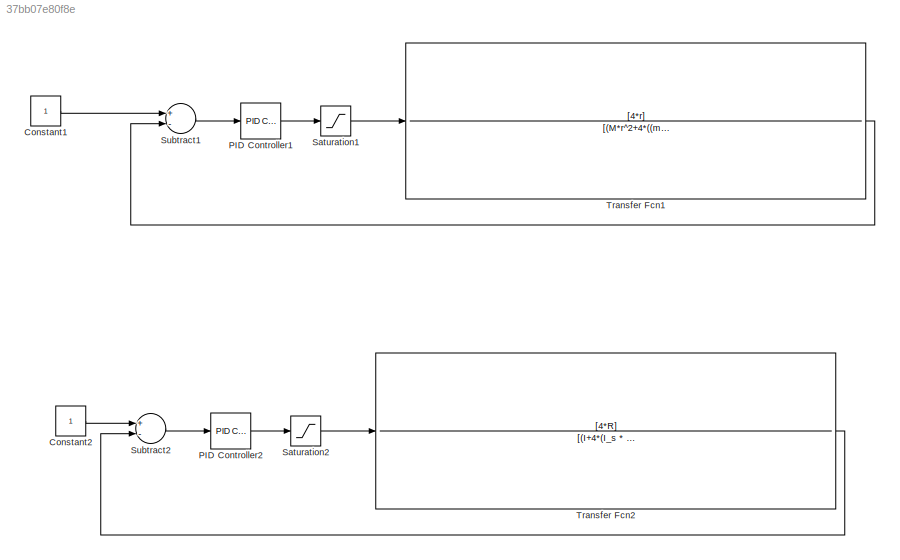
MODEL slx_37bb07e80f8e
KIND model
CONFIG AbsTol = auto
CONFIG EnableMultiTasking = off
CONFIG FixedStep = auto
CONFIG MaxStep = auto
CONFIG MinStep = auto
CONFIG RelTol = 1e-3
CONFIG SampleTimeConstraint = Unconstrained
CONFIG Solver = VariableStepAuto
CONFIG SolverName = VariableStepAuto
CONFIG StartTime = 0.0
CONFIG StopTime = 10.0
BLOCK [Constant] Constant1
BLOCK [Constant] Constant2
BLOCK [Reference] PID Controller1  REF=simulink/Continuous/PID Controller
  Ports = [1, 1]
  SourceBlock = simulink/Continuous/PID Controller
  SourceProductBaseCode = SL
  SourceProductName = Simulink
  SourceType = PID 1dof
BLOCK [Reference] PID Controller2  REF=simulink/Continuous/PID Controller
  Ports = [1, 1]
  SourceBlock = simulink/Continuous/PID Controller
  SourceProductBaseCode = SL
  SourceProductName = Simulink
  SourceType = PID 1dof
BLOCK [Saturate] Saturation1
  InputPortMap = u0
  LowerLimit = -0.03
  Ports = [1, 1]
  UpperLimit = 0.03
BLOCK [Saturate] Saturation2
  InputPortMap = u0
  LowerLimit = -0.03
  Ports = [1, 1]
  UpperLimit = 0.03
BLOCK [Sum] Subtract1
  InputSameDT = off
  Inputs = +-
  OutDataTypeStr = Inherit: Inherit via internal rule
  Ports = [2, 1]
  SaturateOnIntegerOverflow = off
BLOCK [Sum] Subtract2
  InputSameDT = off
  Inputs = +-
  OutDataTypeStr = Inherit: Inherit via internal rule
  Ports = [2, 1]
  SaturateOnIntegerOverflow = off
BLOCK [TransferFcn] Transfer Fcn1
  Denominator = [(M*r^2+4*((m_s+m_i)*r^2+I_s)) 0]
  Numerator = [4*r]
BLOCK [TransferFcn] Transfer Fcn2
  Denominator = [(I+4*(I_s * ( 1 + R/r )+I_i+(m_s+m_i)*R^2))*r 0 0]
  Numerator = [4*R]
LINE Constant1:1 -> Subtract1:1
LINE Constant2:1 -> Subtract2:1
LINE PID Controller1:1 -> Saturation1:1
LINE PID Controller2:1 -> Saturation2:1
LINE Saturation1:1 -> Transfer Fcn1:1
LINE Saturation2:1 -> Transfer Fcn2:1
LINE Subtract1:1 -> PID Controller1:1
LINE Subtract2:1 -> PID Controller2:1
LINE Transfer Fcn1:1 -> Subtract1:2
LINE Transfer Fcn2:1 -> Subtract2:2
